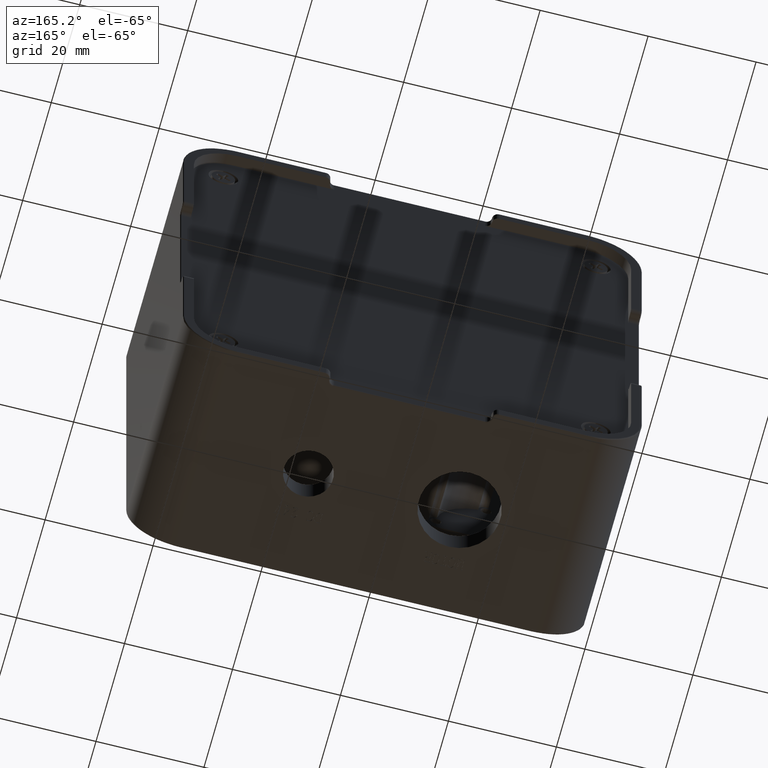
[diagram: clean part render]
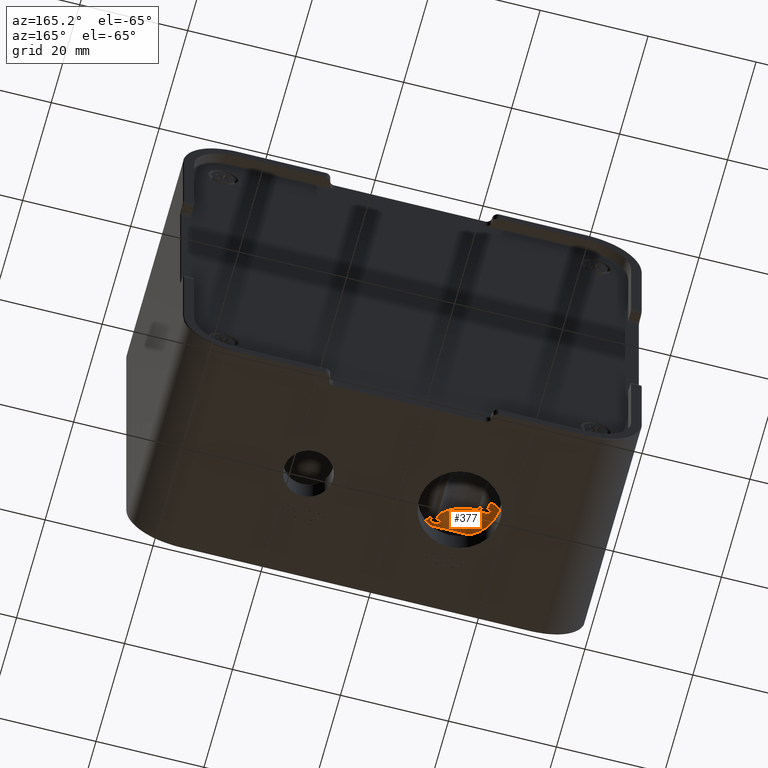
[diagram: same view with one face highlighted and labeled with its STEP entity id]
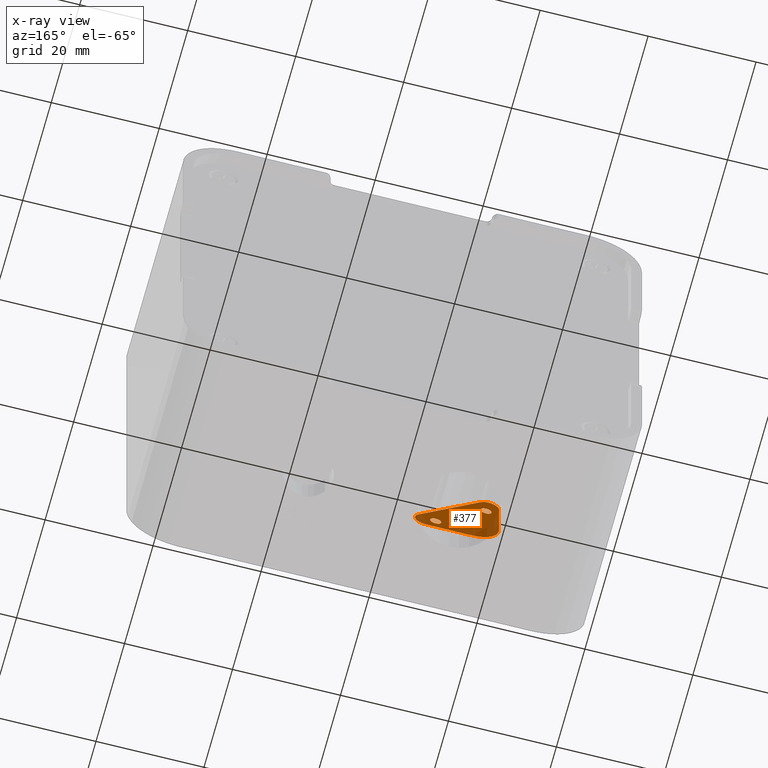
[diagram: x-ray of the same camera — body ghosted, the highlighted face saturated]
A machine part, auxiliary view. The second image highlights one B-rep face of the part: STEP entity #377.
The next image is the same camera in x-ray: the body ghosted, the highlighted face saturated — about 17% of this face is hidden behind the body in this view.
In plain terms, the highlighted planar face has unit normal (0, -1, -0).
Its self-contained STEP definition (entity closure, byte-faithful):
#139 = CARTESIAN_POINT ( 'NONE',  ( 18.00000000000001066, 7.999999999999989342, 72.00000000000001421 ) ) ;
#377 = ADVANCED_FACE ( 'NONE', ( #1200, #28570, #42306 ), #22067, .F. ) ;
#1200 = FACE_OUTER_BOUND ( 'NONE', #13547, .T. ) ;
#3555 = EDGE_CURVE ( 'NONE', #29187, #26872, #15215, .T. ) ;
#4052 = LINE ( 'NONE', #42003, #34008 ) ;
#5910 = AXIS2_PLACEMENT_3D ( 'NONE', #10811, #31257, #14194 ) ;
#9883 = VERTEX_POINT ( 'NONE', #15143 ) ;
#10016 = DIRECTION ( 'NONE',  ( -8.163404592832032733E-17, -9.997287304756580616E-33, 1.000000000000000000 ) ) ;
#10108 = VERTEX_POINT ( 'NONE', #25897 ) ;
#10174 = DIRECTION ( 'NONE',  ( -1.000000000000000000, 0.000000000000000000, -1.734723475976805517E-15 ) ) ;
#10412 = EDGE_CURVE ( 'NONE', #37660, #26872, #26639, .T. ) ;
#10811 = CARTESIAN_POINT ( 'NONE',  ( 20.00000000000001066, 7.999999999999981348, 30.58421356237316857 ) ) ;
#11510 = ORIENTED_EDGE ( 'NONE', *, *, #12699, .T. ) ;
#12002 = CARTESIAN_POINT ( 'NONE',  ( 31.58421356237289146, 7.999999999999988454, 19.00000000000000355 ) ) ;
#12480 = VERTEX_POINT ( 'NONE', #14626 ) ;
#12699 = EDGE_CURVE ( 'NONE', #33815, #12480, #27312, .T. ) ;
#13547 = EDGE_LOOP ( 'NONE', ( #18074, #11510, #33203, #20186, #29352, #16750 ) ) ;
#14194 = DIRECTION ( 'NONE',  ( -1.000000000000000000, 0.000000000000000000, 0.000000000000000000 ) ) ;
#14424 = CARTESIAN_POINT ( 'NONE',  ( 31.58421356237289146, 7.999999999999988454, 17.00000000000000000 ) ) ;
#14626 = CARTESIAN_POINT ( 'NONE',  ( 23.00000000000000711, 7.999999999999989342, 17.00000000000000711 ) ) ;
#14687 = AXIS2_PLACEMENT_3D ( 'NONE', #12002, #39419, #10174 ) ;
#15143 = CARTESIAN_POINT ( 'NONE',  ( 32.99842712474601569, 7.999999999999984901, 20.41421356237309226 ) ) ;
#15215 = CIRCLE ( 'NONE', #5910, 2.000000000000001776 ) ;
#15552 = DIRECTION ( 'NONE',  ( 1.224646799147356905E-16, -1.000000000000000000, -1.224646799147353207E-16 ) ) ;
#15567 = VECTOR ( 'NONE', #21028, 1000.000000000000000 ) ;
#16750 = ORIENTED_EDGE ( 'NONE', *, *, #43919, .T. ) ;
#17490 = EDGE_CURVE ( 'NONE', #37660, #12480, #26648, .T. ) ;
#17714 = VECTOR ( 'NONE', #10016, 1000.000000000000000 ) ;
#17722 = DIRECTION ( 'NONE',  ( 0.7071067811865392461, -0.000000000000000000, -0.7071067811865556774 ) ) ;
#18045 = CARTESIAN_POINT ( 'NONE',  ( 19.39500000000007773, 7.999999999999986677, 28.74999999999998224 ) ) ;
#18074 = ORIENTED_EDGE ( 'NONE', *, *, #33668, .F. ) ;
#19709 = CIRCLE ( 'NONE', #14687, 2.000000000000001776 ) ;
#20090 = EDGE_LOOP ( 'NONE', ( #43959 ) ) ;
#20186 = ORIENTED_EDGE ( 'NONE', *, *, #10412, .T. ) ;
#20690 = EDGE_CURVE ( 'NONE', #42780, #42780, #29627, .T. ) ;
#21028 = DIRECTION ( 'NONE',  ( -1.000000000000000000, -0.000000000000000000, 1.706893687592152848E-16 ) ) ;
#22067 = PLANE ( 'NONE',  #32255 ) ;
#23958 = DIRECTION ( 'NONE',  ( -1.000000000000000000, 0.000000000000000000, 0.000000000000000000 ) ) ;
#24192 = CIRCLE ( 'NONE', #37840, 1.024999999999987699 ) ;
#24622 = CARTESIAN_POINT ( 'NONE',  ( 73.00000000000001421, 7.999999999999988454, 16.99999999999999645 ) ) ;
#25156 = EDGE_CURVE ( 'NONE', #10108, #10108, #24192, .T. ) ;
#25897 = CARTESIAN_POINT ( 'NONE',  ( 28.72500000000006537, 7.999999999999989342, 19.42000000000000171 ) ) ;
#26069 = DIRECTION ( 'NONE',  ( 1.000000000000000000, 0.000000000000000000, 0.000000000000000000 ) ) ;
#26639 = LINE ( 'NONE', #139, #17714 ) ;
#26648 = CIRCLE ( 'NONE', #40312, 5.000000000000000888 ) ;
#26872 = VERTEX_POINT ( 'NONE', #36582 ) ;
#27095 = CARTESIAN_POINT ( 'NONE',  ( 20.42000000000006565, 7.999999999999986677, 28.74999999999998224 ) ) ;
#27312 = LINE ( 'NONE', #24622, #15567 ) ;
#28570 = FACE_BOUND ( 'NONE', #20090, .T. ) ;
#29187 = VERTEX_POINT ( 'NONE', #43157 ) ;
#29352 = ORIENTED_EDGE ( 'NONE', *, *, #3555, .F. ) ;
#29627 = CIRCLE ( 'NONE', #31767, 1.024999999999987699 ) ;
#30312 = DIRECTION ( 'NONE',  ( 1.224646799147356905E-16, -1.000000000000000000, -1.224646799147353207E-16 ) ) ;
#31257 = DIRECTION ( 'NONE',  ( 1.224646799147356905E-16, -1.000000000000000000, -1.224646799147353207E-16 ) ) ;
#31767 = AXIS2_PLACEMENT_3D ( 'NONE', #27095, #34280, #23958 ) ;
#32255 = AXIS2_PLACEMENT_3D ( 'NONE', #38945, #15552, #32840 ) ;
#32840 = DIRECTION ( 'NONE',  ( 1.000000000000000000, 1.224646799147356905E-16, 0.000000000000000000 ) ) ;
#33203 = ORIENTED_EDGE ( 'NONE', *, *, #17490, .F. ) ;
#33668 = EDGE_CURVE ( 'NONE', #33815, #9883, #19709, .T. ) ;
#33815 = VERTEX_POINT ( 'NONE', #14424 ) ;
#34008 = VECTOR ( 'NONE', #17722, 1000.000000000000114 ) ;
#34280 = DIRECTION ( 'NONE',  ( -1.224646799147356905E-16, 1.000000000000000000, 1.224646799147353207E-16 ) ) ;
#34937 = ORIENTED_EDGE ( 'NONE', *, *, #25156, .F. ) ;
#35516 = CARTESIAN_POINT ( 'NONE',  ( 29.75000000000005329, 7.999999999999989342, 19.42000000000000171 ) ) ;
#36399 = CARTESIAN_POINT ( 'NONE',  ( 23.00000000000001066, 7.999999999999989342, 22.00000000000001066 ) ) ;
#36582 = CARTESIAN_POINT ( 'NONE',  ( 18.00000000000001421, 7.999999999999986677, 30.58421356237316857 ) ) ;
#37217 = EDGE_LOOP ( 'NONE', ( #34937 ) ) ;
#37660 = VERTEX_POINT ( 'NONE', #41804 ) ;
#37840 = AXIS2_PLACEMENT_3D ( 'NONE', #35516, #42496, #42282 ) ;
#38945 = CARTESIAN_POINT ( 'NONE',  ( 42.49999999999999289, 7.999999999999986677, 42.49999999999998579 ) ) ;
#39419 = DIRECTION ( 'NONE',  ( 1.224646799147356905E-16, -1.000000000000000000, -1.224646799147353207E-16 ) ) ;
#40312 = AXIS2_PLACEMENT_3D ( 'NONE', #36399, #30312, #26069 ) ;
#41804 = CARTESIAN_POINT ( 'NONE',  ( 18.00000000000001066, 7.999999999999989342, 22.00000000000000000 ) ) ;
#42003 = CARTESIAN_POINT ( 'NONE',  ( 18.00000000000001421, 7.999999999999981348, 35.41264068711944191 ) ) ;
#42282 = DIRECTION ( 'NONE',  ( -1.000000000000000000, 0.000000000000000000, 0.000000000000000000 ) ) ;
#42306 = FACE_BOUND ( 'NONE', #37217, .T. ) ;
#42496 = DIRECTION ( 'NONE',  ( -1.224646799147356905E-16, 1.000000000000000000, 1.224646799147353207E-16 ) ) ;
#42780 = VERTEX_POINT ( 'NONE', #18045 ) ;
#43157 = CARTESIAN_POINT ( 'NONE',  ( 21.41421356237312068, 7.999999999999981348, 31.99842712474625017 ) ) ;
#43919 = EDGE_CURVE ( 'NONE', #29187, #9883, #4052, .T. ) ;
#43959 = ORIENTED_EDGE ( 'NONE', *, *, #20690, .F. ) ;